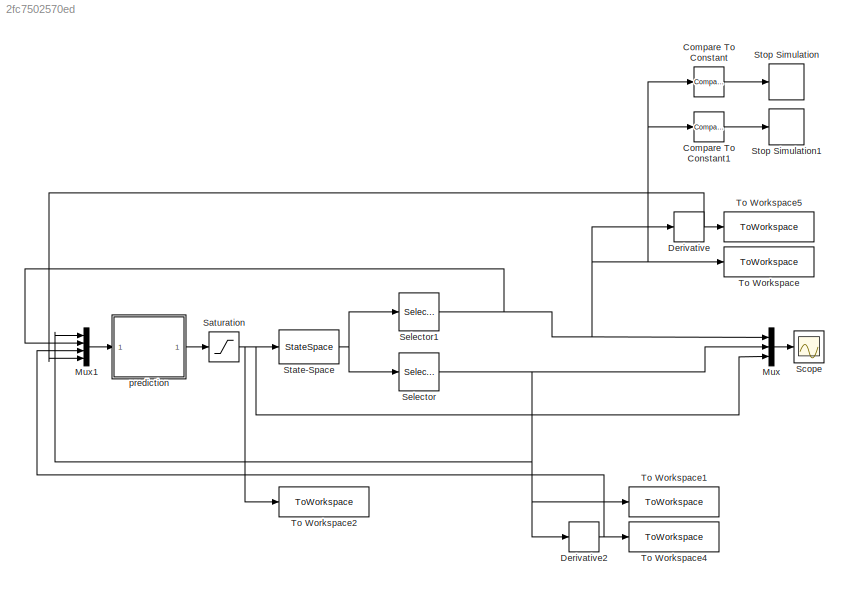
MODEL slx_2fc7502570ed
KIND model
CONFIG AbsTol = auto
CONFIG EnableMultiTasking = off
CONFIG FixedStep = auto
CONFIG MaxStep = auto
CONFIG MinStep = auto
CONFIG RelTol = 1e-3
CONFIG SampleTimeConstraint = Unconstrained
CONFIG Solver = VariableStepAuto
CONFIG SolverName = VariableStepAuto
CONFIG StartTime = 0.0
CONFIG StopTime = 30
BLOCK [Reference] Compare To Constant  REF=simulink/Logic and Bit
Operations/Compare
To Constant
  Ports = [1, 1]
  SourceBlock = simulink/Logic and Bit\nOperations/Compare\nTo Constant
  SourceProductBaseCode = SL
  SourceProductName = Simulink
  SourceType = Compare To Constant
BLOCK [Reference] Compare To Constant1  REF=simulink/Logic and Bit
Operations/Compare
To Constant
  Ports = [1, 1]
  SourceBlock = simulink/Logic and Bit\nOperations/Compare\nTo Constant
  SourceProductBaseCode = SL
  SourceProductName = Simulink
  SourceType = Compare To Constant
BLOCK [Derivative] Derivative
BLOCK [Derivative] Derivative2
BLOCK [Mux] Mux
  DisplayOption = bar
  Inputs = 3
  Ports = [3, 1]
BLOCK [Mux] Mux1
  DisplayOption = bar
  Ports = [4, 1]
BLOCK [Saturate] Saturation
  InputPortMap = u0
  LowerLimit = -7.3704
  Ports = [1, 1]
  UpperLimit = 7.3704
BLOCK [Scope] Scope
  Floating = off
  NumInputPorts = 1
  Ports = [1]
  ScopeSpecificationString = Simulink.scopes.TimeScopeBlockCfg('CurrentConfiguration', extmgr.ConfigurationSet(extmgr.Configuration('Core','General UI',true),extmgr.Configuration('Core','Source UI',true),extmgr.Configuration('Sources','WiredSimulink',true),extmgr.Configuration('Visuals','Time Domain',true,'SerializedDisplays',{struct('MinYLimReal','-11.91896','MaxYLimReal','71.33954','YLabelReal','','MinYLimMag','0.00000','Ma...<+1500ch>
BLOCK [Selector] Selector
  IndexOptions = Index vector (dialog)
  Indices = [1]
  InputPortWidth = 2
  OutputSizes = 1
  Ports = [1, 1]
BLOCK [Selector] Selector1
  IndexOptions = Index vector (dialog)
  Indices = [2]
  InputPortWidth = 2
  OutputSizes = 1
  Ports = [1, 1]
BLOCK [StateSpace] State-Space
  A = A
  B = B
  C = C
  D = D
  InitialCondition = [0 0 -0.3 0]
  Ports = [1, 1]
BLOCK [Stop] Stop Simulation
BLOCK [Stop] Stop Simulation1
BLOCK [ToWorkspace] To Workspace
  FixptAsFi = on
  MaxDataPoints = inf
  Ports = [1]
  SampleTime = -1
  VariableName = phi
BLOCK [ToWorkspace] To Workspace1
  FixptAsFi = on
  MaxDataPoints = inf
  Ports = [1]
  SampleTime = -1
  VariableName = x
BLOCK [ToWorkspace] To Workspace2
  FixptAsFi = on
  MaxDataPoints = inf
  Ports = [1]
  SampleTime = -1
  VariableName = u
BLOCK [ToWorkspace] To Workspace4
  FixptAsFi = on
  MaxDataPoints = inf
  Ports = [1]
  SampleTime = -1
  VariableName = x_dot
BLOCK [ToWorkspace] To Workspace5
  FixptAsFi = on
  MaxDataPoints = inf
  Ports = [1]
  SampleTime = -1
  VariableName = phi_dot
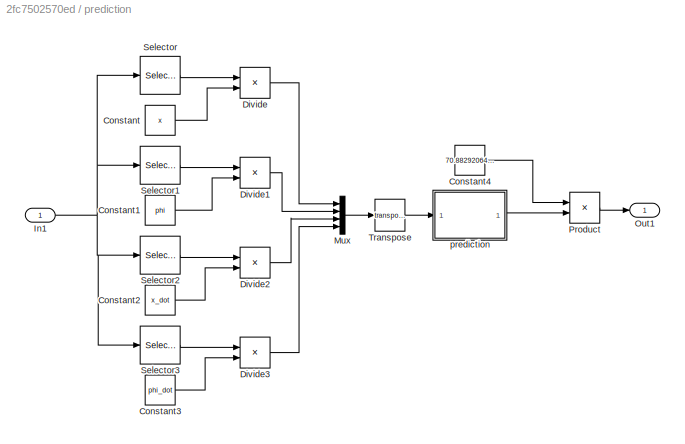
BLOCK [SubSystem] prediction 
  Ports = [1, 1]
  RequestExecContextInheritance = off
BLOCK [Constant] prediction /Constant
  Value = x
BLOCK [Constant] prediction /Constant1
  Value = phi
BLOCK [Constant] prediction /Constant2
  Value = x_dot
BLOCK [Constant] prediction /Constant3
  Value = phi_dot
BLOCK [Constant] prediction /Constant4
  Value = 70.882920649638480
BLOCK [Product] prediction /Divide
  InputSameDT = off
  Inputs = */
  OutDataTypeStr = Inherit: Inherit via internal rule
  Ports = [2, 1]
  RndMeth = Floor
  SaturateOnIntegerOverflow = off
BLOCK [Product] prediction /Divide1
  InputSameDT = off
  Inputs = */
  OutDataTypeStr = Inherit: Inherit via internal rule
  Ports = [2, 1]
  RndMeth = Floor
  SaturateOnIntegerOverflow = off
BLOCK [Product] prediction /Divide2
  InputSameDT = off
  Inputs = */
  OutDataTypeStr = Inherit: Inherit via internal rule
  Ports = [2, 1]
  RndMeth = Floor
  SaturateOnIntegerOverflow = off
BLOCK [Product] prediction /Divide3
  InputSameDT = off
  Inputs = */
  OutDataTypeStr = Inherit: Inherit via internal rule
  Ports = [2, 1]
  RndMeth = Floor
  SaturateOnIntegerOverflow = off
BLOCK [Inport] prediction /In1
  IconDisplay = Port number
BLOCK [Mux] prediction /Mux
  DisplayOption = bar
  Ports = [4, 1]
BLOCK [Outport] prediction /Out1
  IconDisplay = Port number
BLOCK [Product] prediction /Product
  InputSameDT = off
  OutDataTypeStr = Inherit: Inherit via internal rule
  Ports = [2, 1]
  RndMeth = Floor
  SaturateOnIntegerOverflow = off
BLOCK [Selector] prediction /Selector
  IndexOptions = Index vector (dialog)
  Indices = [1]
  InputPortWidth = 4
  OutputSizes = 1
  Ports = [1, 1]
BLOCK [Selector] prediction /Selector1
  IndexOptions = Index vector (dialog)
  Indices = [2]
  InputPortWidth = 4
  OutputSizes = 1
  Ports = [1, 1]
BLOCK [Selector] prediction /Selector2
  IndexOptions = Index vector (dialog)
  Indices = [3]
  InputPortWidth = 4
  OutputSizes = 1
  Ports = [1, 1]
BLOCK [Selector] prediction /Selector3
  IndexOptions = Index vector (dialog)
  Indices = [4]
  InputPortWidth = 4
  OutputSizes = 1
  Ports = [1, 1]
BLOCK [Math] prediction /Transpose
  Operator = transpose
  Ports = [1, 1]
  SignedPower = off
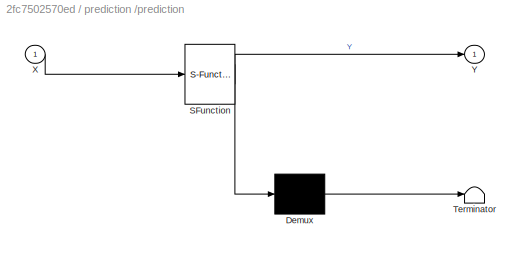
BLOCK [SubSystem] prediction /prediction 
  ErrorFcn = Stateflow.Translate.translate
  PermitHierarchicalResolution = ExplicitOnly
  Ports = [1, 1]
  RequestExecContextInheritance = off
  SFBlockType = MATLAB Function
  TreatAsAtomicUnit = on
BLOCK [Demux] prediction /prediction / Demux 
  Outputs = 1
  Ports = [1, 1]
BLOCK [S-Function] prediction /prediction / SFunction 
  EnableBusSupport = on
  FunctionName = sf_sfun
  PortCounts = [1 2]
  Ports = [1, 2]
  SFcnIsStateOwnerBlock = off
  SFunctionDeploymentMode = off
  Tag = Stateflow S-Function 1
BLOCK [Terminator] prediction /prediction / Terminator 
BLOCK [Inport] prediction /prediction /X
  IconDisplay = Port number
BLOCK [Outport] prediction /prediction /Y
  IconDisplay = Port number
LINE Compare To Constant1:1 -> Stop Simulation1:1
LINE Compare To Constant:1 -> Stop Simulation:1
NET Derivative2:1 -> Mux1:3, To Workspace4:1
NET Derivative:1 -> Mux1:4, To Workspace5:1
LINE Mux1:1 -> prediction :1
LINE Mux:1 -> Scope:1
NET Saturation:1 -> Mux:3, State-Space:1, To Workspace2:1
NET Selector1:1 -> Compare To Constant1:1, Compare To Constant:1, Derivative:1, Mux1:2, Mux:1, To Workspace:1
NET Selector:1 -> Derivative2:1, Mux1:1, Mux:2, To Workspace1:1
NET State-Space:1 -> Selector1:1, Selector:1
LINE prediction /Constant1:1 -> prediction /Divide1:2
LINE prediction /Constant2:1 -> prediction /Divide2:2
LINE prediction /Constant3:1 -> prediction /Divide3:2
LINE prediction /Constant4:1 -> prediction /Product:1
LINE prediction /Constant:1 -> prediction /Divide:2
LINE prediction /Divide1:1 -> prediction /Mux:2
LINE prediction /Divide2:1 -> prediction /Mux:3
LINE prediction /Divide3:1 -> prediction /Mux:4
LINE prediction /Divide:1 -> prediction /Mux:1
NET prediction /In1:1 -> prediction /Selector1:1, prediction /Selector2:1, prediction /Selector3:1, prediction /Selector:1
LINE prediction /Mux:1 -> prediction /Transpose:1
LINE prediction /Product:1 -> prediction /Out1:1
LINE prediction /Selector1:1 -> prediction /Divide1:1
LINE prediction /Selector2:1 -> prediction /Divide2:1
LINE prediction /Selector3:1 -> prediction /Divide3:1
LINE prediction /Selector:1 -> prediction /Divide:1
LINE prediction /Transpose:1 -> prediction /prediction :1
LINE prediction /prediction :1 -> prediction /Product:2
LINE prediction :1 -> Saturation:1
note: NET lines group one-source signal fan-out (src -> all destinations, sorted); 1:1 wires keep LINE
CHART prediction
/prediction
 states=1 transitions=1
  STATE_LABEL 'eML_blk_kernel()'
  STATE_LABEL "SCRIPT:\nfunction Y = prediction(X) %#codegen\nMdl = loadLearnerForCoder('model');\nY = predict(Mdl,X);\nend\n"
